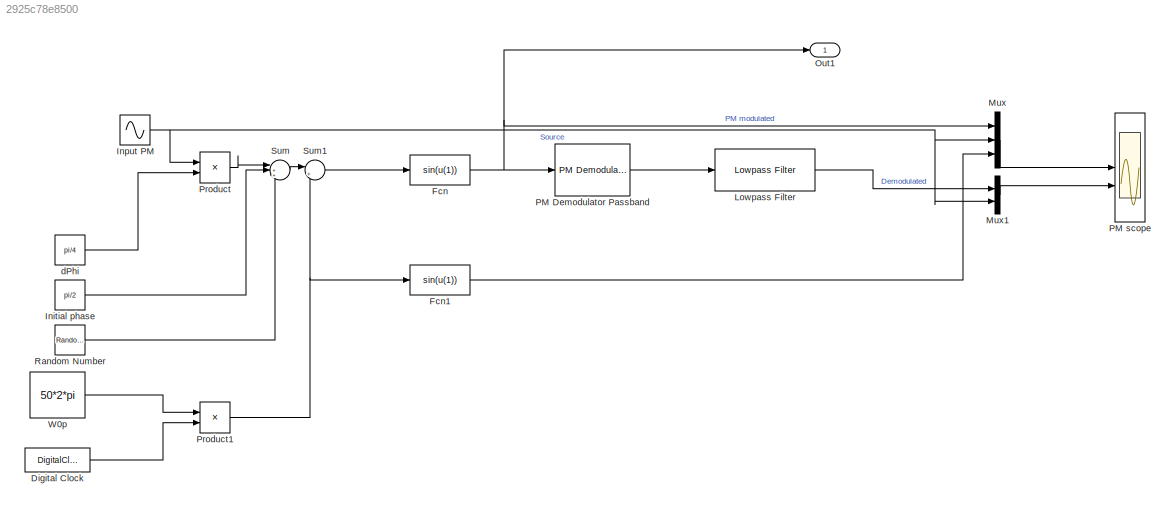
MODEL slx_2925c78e8500
KIND model
CONFIG AbsTol = auto
CONFIG EnableMultiTasking = off
CONFIG FixedStep = 0.0001
CONFIG MaxStep = auto
CONFIG MinStep = auto
CONFIG RelTol = 1e-3
CONFIG SampleTimeConstraint = Unconstrained
CONFIG SolverName = FixedStepDiscrete
CONFIG StartTime = 0.0
CONFIG StopTime = 1
WORKSPACE source: mxarray member
WORKSPACE Sig: Simulink.Signal (value not decoded)
WORKSPACE phaseDeviation = 0.785398163397
WORKSPACE variance = 0
BLOCK [DigitalClock] Digital Clock
  SampleTime = 0.0001
BLOCK [Fcn] Fcn
  Expr = sin(u(1))
BLOCK [Fcn] Fcn1
  Expr = sin(u(1))
BLOCK [Constant] Initial phase
  Value = pi/2
BLOCK [Sin] Input PM
  Frequency = 2*2*pi
  SampleTime = 0.0001
BLOCK [Reference] Lowpass Filter  REF=dspfdesign/Lowpass Filter
  SourceBlock = dspfdesign/Lowpass Filter
  SourceType = dsp.simulink.LowpassFilter
BLOCK [Mux] Mux
  DisplayOption = bar
  Inputs = 3
BLOCK [Mux] Mux1
  DisplayOption = bar
  Inputs = 2
BLOCK [Outport] Out1
BLOCK [Reference] PM Demodulator Passband  REF=commanapbnd3/PM
Demodulator
Passband
  SourceBlock = commanapbnd3/PM\nDemodulator\nPassband
  SourceType = PM Demodulator Passband
BLOCK [Scope] PM scope
  Floating = off
  NumInputPorts = 2
  ScopeSpecificationString = Simulink.scopes.TimeScopeBlockCfg('CurrentConfiguration', extmgr.ConfigurationSet(extmgr.Configuration('Core','General UI',true,'FigureColor',[1 1 1]),extmgr.Configuration('Core','Source UI',true),extmgr.Configuration('Sources','WiredSimulink',true,'DataLoggingVariableName','ScopeData1'),extmgr.Configuration('Visuals','Time Domain',true,'SerializedDisplays',{struct('MinYLimReal','-1.25','MaxYLimRe...<+2130ch>
BLOCK [Product] Product
BLOCK [Product] Product1
BLOCK [RandomNumber] Random Number
  Mean = 0.5
  SampleTime = 0.0001
  Variance = variance
BLOCK [Sum] Sum
  Inputs = |+++
BLOCK [Sum] Sum1
  Inputs = |++
BLOCK [Constant] W0p
  Value = 50*2*pi
BLOCK [Constant] dPhi
  Value = pi/4
LINE Digital Clock:1 -> Product1:2
LINE Fcn1:1 -> Mux:3
NET Fcn:1 -> Mux:1, Out1:1, PM Demodulator Passband:1
LINE Initial phase:1 -> Sum:2
NET Input PM:1 -> Mux1:2, Mux:2, Product:1
LINE Lowpass Filter:1 -> Mux1:1
LINE Mux1:1 -> PM scope:2
LINE Mux:1 -> PM scope:1
LINE PM Demodulator Passband:1 -> Lowpass Filter:1
NET Product1:1 -> Fcn1:1, Sum1:2
LINE Product:1 -> Sum:1
LINE Random Number:1 -> Sum:3
LINE Sum1:1 -> Fcn:1
LINE Sum:1 -> Sum1:1
LINE W0p:1 -> Product1:1
LINE dPhi:1 -> Product:2
note: NET lines group one-source signal fan-out (src -> all destinations, sorted); 1:1 wires keep LINE
